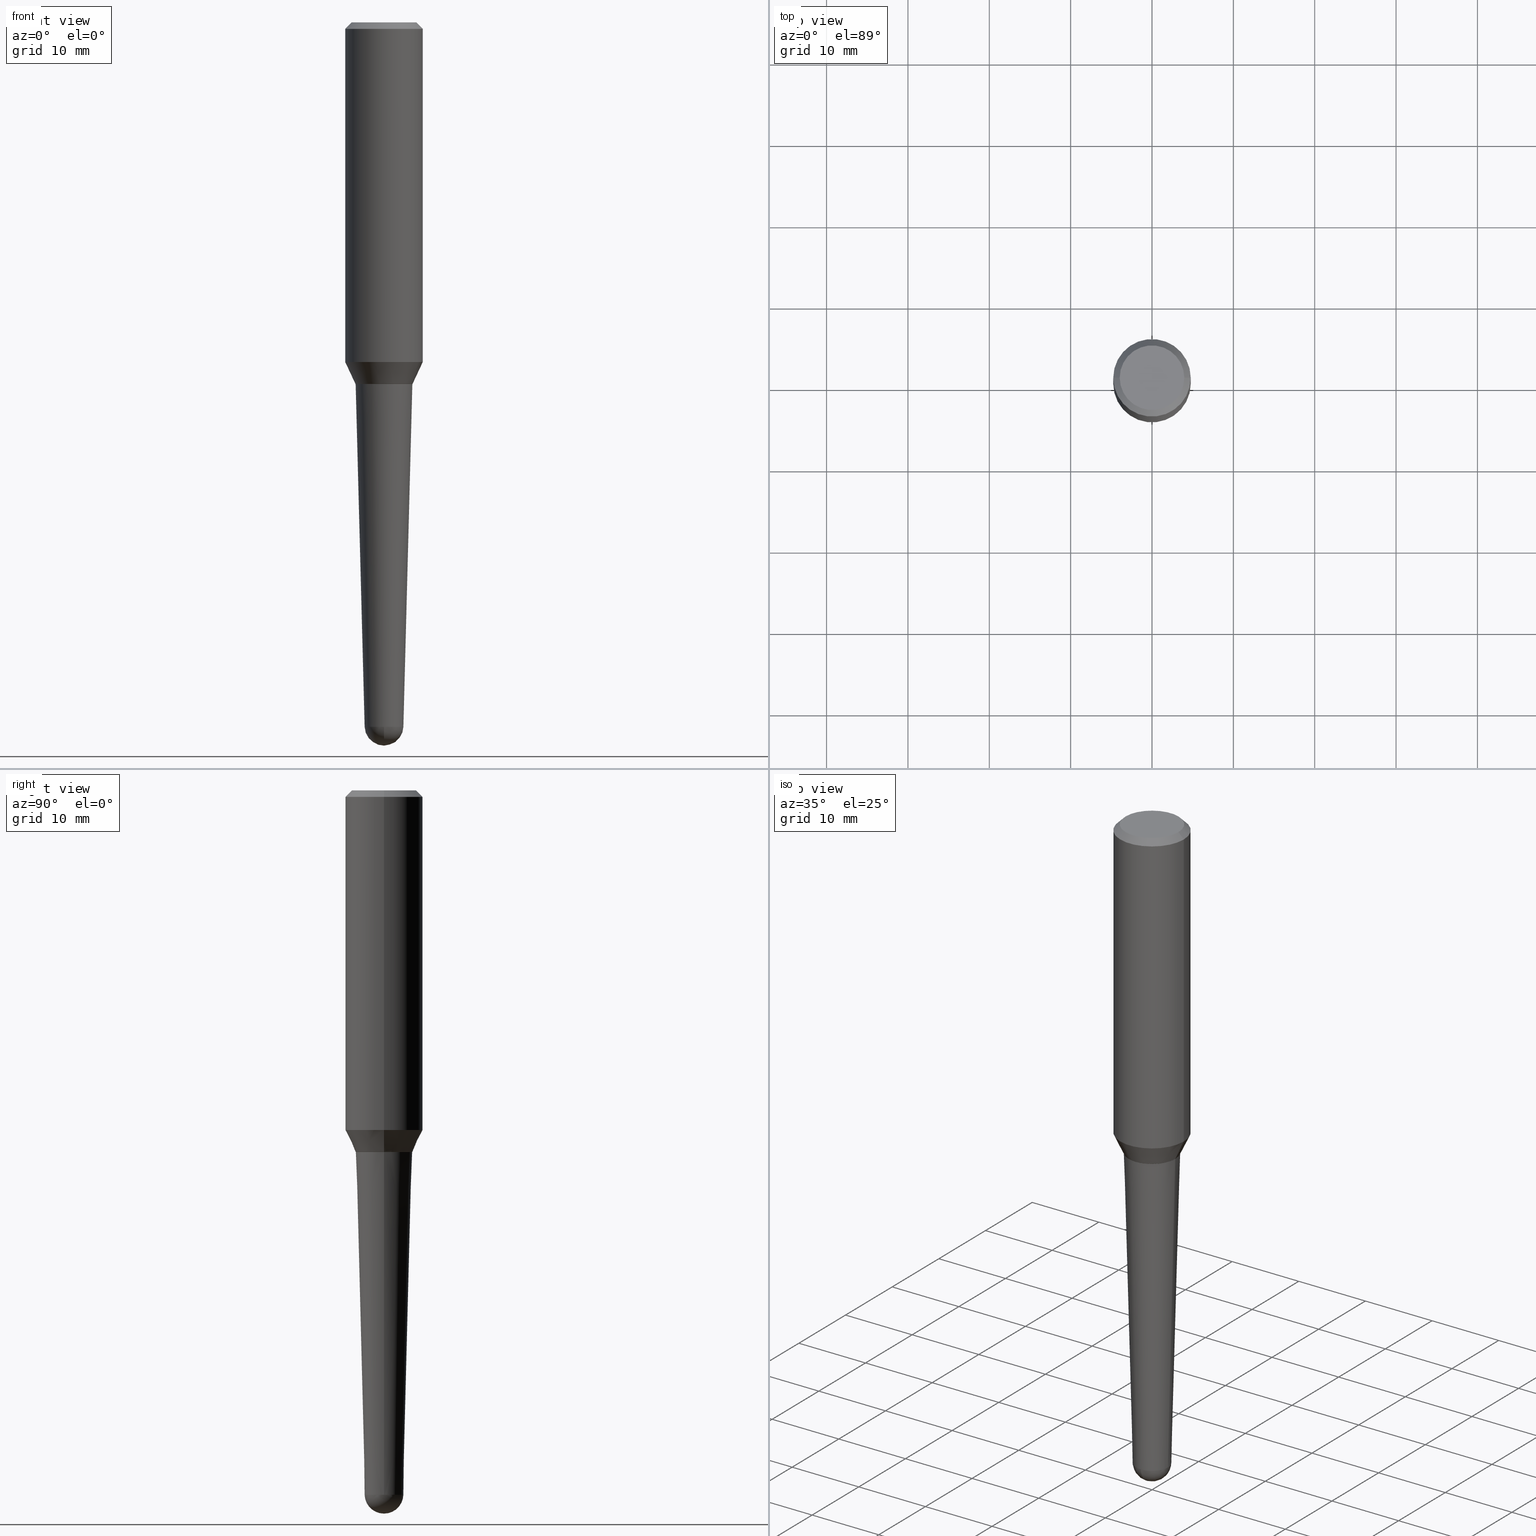
[diagram: canonical four-view strip — front | top / right | iso, engineering-drawing reading convention]
A machine part, canonical four-view strip (front | top / right | iso — engineering-drawing reading convention). The complete STEP part file that produces these views, byte-faithful:
ISO-10303-21;
HEADER;
FILE_DESCRIPTION (( 'STEP AP203' ),
    '1' );
FILE_NAME ('32418.STEP',
    '2024-03-04T15:23:18',
    ( '' ),
    ( '' ),
    'SwSTEP 2.0',
    'SolidWorks 2023',
    '' );
FILE_SCHEMA (( 'CONFIG_CONTROL_DESIGN' ));
ENDSEC;

DATA;
#1 = CARTESIAN_POINT ( 'NONE',  ( 8.335760446235340310E-29, -1.190125671179554785E-14, -3.408655397751278571 ) ) ;
#2 = VERTEX_POINT ( 'NONE', #285 ) ;
#3 = ORIENTED_EDGE ( 'NONE', *, *, #361, .F. ) ;
#4 = AXIS2_PLACEMENT_3D ( 'NONE', #239, #374, #296 ) ;
#5 = AXIS2_PLACEMENT_3D ( 'NONE', #155, #452, #26 ) ;
#6 = CC_DESIGN_DATE_AND_TIME_ASSIGNMENT ( #396, #42, ( #78 ) ) ;
#7 = PERSON_AND_ORGANIZATION ( #67, #215 ) ;
#8 = CARTESIAN_POINT ( 'NONE',  ( -0.1562500000000006661, 1.145642314307903724E-15, -8.065453072484580114E-16 ) ) ;
#9 = DATE_AND_TIME ( #182, #436 ) ;
#10 = CIRCLE ( 'NONE', #269, 0.09376785708270754527 ) ;
#11 = CARTESIAN_POINT ( 'NONE',  ( 8.582295004485378169E-29, -1.153103329011131551E-14, -3.406199999999999672 ) ) ;
#12 = DIRECTION ( 'NONE',  ( -2.445468806185136597E-29, 3.491481338843145583E-15, 1.000000000000000000 ) ) ;
#13 = ORIENTED_EDGE ( 'NONE', *, *, #273, .T. ) ;
#14 = CIRCLE ( 'NONE', #189, 0.1562500000000006661 ) ;
#15 = LINE ( 'NONE', #23, #411 ) ;
#16 = CARTESIAN_POINT ( 'NONE',  ( 4.278347676420896243E-29, -6.108346602306083167E-15, -1.749500000000000055 ) ) ;
#17 = ORIENTED_EDGE ( 'NONE', *, *, #449, .T. ) ;
#18 = ORIENTED_EDGE ( 'NONE', *, *, #195, .T. ) ;
#19 = CARTESIAN_POINT ( 'NONE',  ( 0.1372012772385309831, -7.068163741263051680E-15, -1.750000000000000000 ) ) ;
#20 = CARTESIAN_POINT ( 'NONE',  ( -0.09376785708270754527, -8.185107324501751393E-15, -3.408655397751278571 ) ) ;
#21 = DESIGN_CONTEXT ( 'detailed design', #174, 'design' ) ;
#22 = ORIENTED_EDGE ( 'NONE', *, *, #41, .F. ) ;
#23 = CARTESIAN_POINT ( 'NONE',  ( -0.1382012772385305677, -5.126367466160027236E-15, -1.749500000000000055 ) ) ;
#24 = CARTESIAN_POINT ( 'NONE',  ( -0.1372012772385309831, -5.135218634187045014E-15, -1.750000000000000000 ) ) ;
#25 = ORIENTED_EDGE ( 'NONE', *, *, #275, .T. ) ;
#26 = DIRECTION ( 'NONE',  ( 6.982962677686266711E-15, 1.000000000000000000, -5.824835807386490575E-15 ) ) ;
#27 = LINE ( 'NONE', #57, #279 ) ;
#28 = AXIS2_PLACEMENT_3D ( 'NONE', #310, #90, #451 ) ;
#29 = ORIENTED_EDGE ( 'NONE', *, *, #423, .T. ) ;
#30 = ORIENTED_EDGE ( 'NONE', *, *, #246, .F. ) ;
#31 = EDGE_LOOP ( 'NONE', ( #125, #138, #408, #351 ) ) ;
#32 = DIRECTION ( 'NONE',  ( -2.445468806185136597E-29, 3.491481338843145583E-15, 1.000000000000000000 ) ) ;
#33 = DIRECTION ( 'NONE',  ( 1.000000000000000000, -6.982962677686269866E-15, 0.000000000000000000 ) ) ;
#34 = AXIS2_PLACEMENT_3D ( 'NONE', #281, #214, #284 ) ;
#35 = PRODUCT_DEFINITION_FORMATION_WITH_SPECIFIED_SOURCE ( 'ANY', '', #60, .NOT_KNOWN. ) ;
#36 = EDGE_CURVE ( 'NONE', #184, #267, #350, .T. ) ;
#37 = CARTESIAN_POINT ( 'NONE',  ( 0.1382012772385305677, -7.073400963271313824E-15, -1.749500000000000055 ) ) ;
#38 = SECURITY_CLASSIFICATION_LEVEL ( 'unclassified' ) ;
#39 = DIRECTION ( 'NONE',  ( -2.445468806185136597E-29, 3.491481338843145583E-15, 1.000000000000000000 ) ) ;
#40 = CALENDAR_DATE ( 2024, 4, 3 ) ;
#41 = EDGE_CURVE ( 'NONE', #318, #418, #356, .T. ) ;
#42 = DATE_TIME_ROLE ( 'classification_date' ) ;
#43 = ADVANCED_FACE ( 'NONE', ( #422 ), #72, .T. ) ;
#44 = CARTESIAN_POINT ( 'NONE',  ( 4.279570410823988484E-29, -6.110092342975503093E-15, -1.749999999999999556 ) ) ;
#45 = EDGE_CURVE ( 'NONE', #355, #418, #358, .T. ) ;
#46 = AXIS2_PLACEMENT_3D ( 'NONE', #16, #68, #420 ) ;
#47 = DIRECTION ( 'NONE',  ( 1.000000000000000000, -6.982962677686263555E-15, 0.000000000000000000 ) ) ;
#48 = EDGE_CURVE ( 'NONE', #241, #405, #94, .T. ) ;
#49 = VERTEX_POINT ( 'NONE', #69 ) ;
#50 = DIRECTION ( 'NONE',  ( -2.445468806185136597E-29, 3.491481338843145583E-15, 1.000000000000000000 ) ) ;
#51 = DIRECTION ( 'NONE',  ( 1.000000000000000000, -6.982962677686266711E-15, 0.000000000000000000 ) ) ;
#52 = VERTEX_POINT ( 'NONE', #175 ) ;
#53 = CC_DESIGN_PERSON_AND_ORGANIZATION_ASSIGNMENT ( #292, #213, ( #35 ) ) ;
#54 = CARTESIAN_POINT ( 'NONE',  ( -0.1875000000000001110, 1.332267629550190807E-15, 5.931196827434205055E-16 ) ) ;
#55 = CC_DESIGN_APPROVAL ( #297, ( #78 ) ) ;
#56 = PLANE ( 'NONE',  #295 ) ;
#57 = CARTESIAN_POINT ( 'NONE',  ( 0.09376785708270754527, -1.255603415817071505E-14, -3.408655397751278571 ) ) ;
#58 = ORIENTED_EDGE ( 'NONE', *, *, #460, .F. ) ;
#59 = DIRECTION ( 'NONE',  ( -2.445468806185136597E-29, 3.491481338843145583E-15, 1.000000000000000000 ) ) ;
#60 = PRODUCT ( '32418', '32418', '', ( #334 ) ) ;
#61 = ORIENTED_EDGE ( 'NONE', *, *, #322, .T. ) ;
#62 = CARTESIAN_POINT ( 'NONE',  ( 8.335760446235340310E-29, -1.190125671179554785E-14, -3.408655397751278571 ) ) ;
#63 = AXIS2_PLACEMENT_3D ( 'NONE', #398, #84, #427 ) ;
#64 = AXIS2_PLACEMENT_3D ( 'NONE', #311, #12, #359 ) ;
#65 = ORIENTED_EDGE ( 'NONE', *, *, #111, .F. ) ;
#66 = ORIENTED_EDGE ( 'NONE', *, *, #312, .T. ) ;
#67 = PERSON ( 'UNSPECIFIED', 'UNSPECIFIED', 'UNSPECIFIED', ('UNSPECIFIED'), ('UNSPECIFIED'), ('UNSPECIFIED') ) ;
#68 = DIRECTION ( 'NONE',  ( -2.445468806185136597E-29, 3.491481338843145583E-15, 1.000000000000000000 ) ) ;
#69 = CARTESIAN_POINT ( 'NONE',  ( -0.1874999999999999722, -1.591897828901198296E-15, -0.03125000000000003469 ) ) ;
#70 = EDGE_CURVE ( 'NONE', #52, #318, #392, .T. ) ;
#71 = EDGE_LOOP ( 'NONE', ( #441, #319, #203, #262, #99 ) ) ;
#72 = CONICAL_SURFACE ( 'NONE', #455, 0.1377012772385309836, 0.7853981633974141952 ) ;
#73 = ORIENTED_EDGE ( 'NONE', *, *, #361, .T. ) ;
#74 = APPROVAL_ROLE ( '' ) ;
#75 = ADVANCED_FACE ( 'NONE', ( #426 ), #378, .T. ) ;
#76 = CALENDAR_DATE ( 2024, 4, 3 ) ;
#77 = AXIS2_PLACEMENT_3D ( 'NONE', #150, #118, #260 ) ;
#78 = SECURITY_CLASSIFICATION ( '', '', #38 ) ;
#79 = AXIS2_PLACEMENT_3D ( 'NONE', #291, #437, #397 ) ;
#80 = APPROVAL_ROLE ( '' ) ;
#81 = CC_DESIGN_PERSON_AND_ORGANIZATION_ASSIGNMENT ( #7, #357, ( #78 ) ) ;
#82 = CARTESIAN_POINT ( 'NONE',  ( 0.1562500000000006661, -1.233702489286409693E-15, -8.065453072484421356E-16 ) ) ;
#83 = VECTOR ( 'NONE', #419, 39.37007874015748143 ) ;
#84 = DIRECTION ( 'NONE',  ( -2.445468806185136597E-29, 3.491481338843145583E-15, 1.000000000000000000 ) ) ;
#85 = ORIENTED_EDGE ( 'NONE', *, *, #48, .T. ) ;
#86 = FACE_OUTER_BOUND ( 'NONE', #153, .T. ) ;
#87 = ORIENTED_EDGE ( 'NONE', *, *, #41, .T. ) ;
#88 = APPROVAL ( #347, 'UNSPECIFIED' ) ;
#89 = ORIENTED_EDGE ( 'NONE', *, *, #45, .F. ) ;
#90 = DIRECTION ( 'NONE',  ( -2.445468806185136597E-29, 3.491481338843145583E-15, 1.000000000000000000 ) ) ;
#91 = CARTESIAN_POINT ( 'NONE',  ( 4.279570410823988484E-29, -6.110092342975504671E-15, -1.750000000000000000 ) ) ;
#92 = VERTEX_POINT ( 'NONE', #8 ) ;
#93 = LOCAL_TIME ( 10, 23, 18.00000000000000000, #228 ) ;
#94 = CIRCLE ( 'NONE', #255, 0.1372012772385309831 ) ;
#95 = CARTESIAN_POINT ( 'NONE',  ( 9.861906948255459936E-45, -1.408018944594737599E-30, -4.032726536242251107E-16 ) ) ;
#96 = PERSON_AND_ORGANIZATION ( #67, #215 ) ;
#97 = CARTESIAN_POINT ( 'NONE',  ( 8.582295004485378169E-29, -1.153103329011131551E-14, -3.406199999999999672 ) ) ;
#98 = FACE_OUTER_BOUND ( 'NONE', #193, .T. ) ;
#99 = ORIENTED_EDGE ( 'NONE', *, *, #48, .F. ) ;
#100 = CIRCLE ( 'NONE', #335, 0.1562500000000006661 ) ;
#101 = ORIENTED_EDGE ( 'NONE', *, *, #399, .T. ) ;
#102 = EDGE_CURVE ( 'NONE', #318, #141, #144, .T. ) ;
#103 = ADVANCED_BREP_SHAPE_REPRESENTATION ( '32418', ( #386, #220, #77 ), #247 ) ;
#104 = DIRECTION ( 'NONE',  ( -2.445468806185136597E-29, 3.491481338843145583E-15, 1.000000000000000000 ) ) ;
#105 = VECTOR ( 'NONE', #124, 39.37007874015748143 ) ;
#106 = ORIENTED_EDGE ( 'NONE', *, *, #428, .F. ) ;
#107 = SHAPE_DEFINITION_REPRESENTATION ( #134, #103 ) ;
#108 = COORDINATED_UNIVERSAL_TIME_OFFSET ( 5, 0, .BEHIND. ) ;
#109 = VECTOR ( 'NONE', #293, 39.37007874015748143 ) ;
#110 = CIRCLE ( 'NONE', #222, 0.1382012772385305677 ) ;
#111 = EDGE_CURVE ( 'NONE', #2, #52, #151, .T. ) ;
#112 = COORDINATED_UNIVERSAL_TIME_OFFSET ( 5, 0, .BEHIND. ) ;
#113 = UNCERTAINTY_MEASURE_WITH_UNIT (LENGTH_MEASURE( 1.000000000000000082E-05 ), #328, 'distance_accuracy_value', 'NONE');
#114 = AXIS2_PLACEMENT_3D ( 'NONE', #294, #403, #196 ) ;
#115 = DIRECTION ( 'NONE',  ( -2.445468806185136597E-29, 3.491481338843145583E-15, 1.000000000000000000 ) ) ;
#116 = ADVANCED_FACE ( 'NONE', ( #147 ), #127, .T. ) ;
#117 = CARTESIAN_POINT ( 'NONE',  ( 4.279570410823988484E-29, -6.110092342975503093E-15, -1.749999999999999556 ) ) ;
#118 = DIRECTION ( 'NONE',  ( 0.000000000000000000, 0.000000000000000000, 1.000000000000000000 ) ) ;
#119 = ORIENTED_EDGE ( 'NONE', *, *, #449, .F. ) ;
#120 = DIRECTION ( 'NONE',  ( -2.445468806185136597E-29, 3.491481338843145583E-15, 1.000000000000000000 ) ) ;
#121 = DIRECTION ( 'NONE',  ( 6.982962677686266711E-15, 1.000000000000000000, 0.000000000000000000 ) ) ;
#122 = ORIENTED_EDGE ( 'NONE', *, *, #428, .T. ) ;
#123 = DATE_AND_TIME ( #459, #209 ) ;
#124 = DIRECTION ( 'NONE',  ( 0.7071067811865486830, -7.319954787623260779E-15, -0.7071067811865464625 ) ) ;
#125 = ORIENTED_EDGE ( 'NONE', *, *, #450, .F. ) ;
#126 = APPROVAL_DATE_TIME ( #339, #88 ) ;
#127 = CONICAL_SURFACE ( 'NONE', #79, 0.09376785708270754527, 0.02617993877991487903 ) ;
#128 = DIRECTION ( 'NONE',  ( 0.02617694830787308663, 3.307492242340416220E-15, 0.9996573249755572599 ) ) ;
#129 = VERTEX_POINT ( 'NONE', #82 ) ;
#130 = CALENDAR_DATE ( 2024, 4, 3 ) ;
#131 = EDGE_CURVE ( 'NONE', #371, #172, #162, .T. ) ;
#132 = AXIS2_PLACEMENT_3D ( 'NONE', #1, #104, #389 ) ;
#133 = DIRECTION ( 'NONE',  ( 1.000000000000000000, -6.982962677686263555E-15, 0.000000000000000000 ) ) ;
#134 = PRODUCT_DEFINITION_SHAPE ( 'NONE', 'NONE',  #136 ) ;
#135 = DIRECTION ( 'NONE',  ( -2.445468806185136597E-29, 3.491481338843145583E-15, 1.000000000000000000 ) ) ;
#136 = PRODUCT_DEFINITION ( 'UNKNOWN', '', #35, #21 ) ;
#137 = AXIS2_PLACEMENT_3D ( 'NONE', #91, #304, #233 ) ;
#138 = ORIENTED_EDGE ( 'NONE', *, *, #111, .T. ) ;
#139 = DIMENSIONAL_EXPONENTS ( 1.000000000000000000, 0.000000000000000000, 0.000000000000000000, 0.000000000000000000, 0.000000000000000000, 0.000000000000000000, 0.000000000000000000 ) ;
#140 = CARTESIAN_POINT ( 'NONE',  ( 9.128281720697099661E-29, 8.335382242720409866E-16, -1.750000000000000000 ) ) ;
#141 = VERTEX_POINT ( 'NONE', #407 ) ;
#142 = CC_DESIGN_PERSON_AND_ORGANIZATION_ASSIGNMENT ( #268, #200, ( #136 ) ) ;
#143 = DIRECTION ( 'NONE',  ( 1.000000000000000000, -6.982962677686265922E-15, 0.000000000000000000 ) ) ;
#144 = CIRCLE ( 'NONE', #325, 0.1382012772385305677 ) ;
#145 = CC_DESIGN_DATE_AND_TIME_ASSIGNMENT ( #123, #179, ( #136 ) ) ;
#146 = CONICAL_SURFACE ( 'NONE', #314, 0.1874999999999999722, 0.7853981633974498333 ) ;
#147 = FACE_OUTER_BOUND ( 'NONE', #71, .T. ) ;
#148 = APPLICATION_CONTEXT ( 'configuration controlled 3d designs of mechanical parts and assemblies' ) ;
#149 = CARTESIAN_POINT ( 'NONE',  ( 1.972381389651091987E-44, -2.816037889189475198E-30, -8.065453072484502214E-16 ) ) ;
#150 = CARTESIAN_POINT ( 'NONE',  ( 0.000000000000000000, 0.000000000000000000, 0.000000000000000000 ) ) ;
#151 = CIRCLE ( 'NONE', #201, 0.1377012772385309836 ) ;
#152 = LINE ( 'NONE', #54, #83 ) ;
#153 = EDGE_LOOP ( 'NONE', ( #376, #13, #160, #308 ) ) ;
#154 = FACE_OUTER_BOUND ( 'NONE', #445, .T. ) ;
#155 = CARTESIAN_POINT ( 'NONE',  ( 8.582295004485378169E-29, -1.153103329011131551E-14, -3.406199999999999672 ) ) ;
#156 = LINE ( 'NONE', #163, #105 ) ;
#157 = FACE_OUTER_BOUND ( 'NONE', #235, .T. ) ;
#158 = FACE_OUTER_BOUND ( 'NONE', #346, .T. ) ;
#159 = PERSON_AND_ORGANIZATION ( #67, #215 ) ;
#160 = ORIENTED_EDGE ( 'NONE', *, *, #36, .F. ) ;
#161 = ADVANCED_FACE ( 'NONE', ( #158 ), #323, .T. ) ;
#162 = CIRCLE ( 'NONE', #424, 0.09379999999999996674 ) ;
#163 = CARTESIAN_POINT ( 'NONE',  ( 0.1874999999999999722, -1.395452166421010480E-15, -0.03125000000000003469 ) ) ;
#164 = DIRECTION ( 'NONE',  ( -2.445468806185136597E-29, 3.491481338843145583E-15, 1.000000000000000000 ) ) ;
#165 = CARTESIAN_POINT ( 'NONE',  ( 4.279570410823988484E-29, -6.110092342975503093E-15, -1.749999999999999556 ) ) ;
#166 = ADVANCED_FACE ( 'NONE', ( #409 ), #56, .F. ) ;
#167 = ORIENTED_EDGE ( 'NONE', *, *, #217, .T. ) ;
#168 = CONICAL_SURFACE ( 'NONE', #46, 0.1382012772385305677, 0.4363323129985711701 ) ;
#169 = CARTESIAN_POINT ( 'NONE',  ( 8.335760446235340310E-29, -1.190125671179554785E-14, -3.408655397751278571 ) ) ;
#170 = CONICAL_SURFACE ( 'NONE', #34, 0.09376785708270754527, 0.02617993877991487903 ) ;
#171 = CARTESIAN_POINT ( 'NONE',  ( 4.019809163081975824E-29, -5.739222125063926739E-15, -1.643778547865743178 ) ) ;
#172 = VERTEX_POINT ( 'NONE', #202 ) ;
#173 = EDGE_CURVE ( 'NONE', #184, #241, #348, .T. ) ;
#174 = APPLICATION_CONTEXT ( 'configuration controlled 3d designs of mechanical parts and assemblies' ) ;
#175 = CARTESIAN_POINT ( 'NONE',  ( 0.1377012772385309836, -7.071655222601894687E-15, -1.749999999999999556 ) ) ;
#176 = VECTOR ( 'NONE', #305, 39.37007874015748854 ) ;
#177 = APPROVAL_STATUS ( 'not_yet_approved' ) ;
#178 = CIRCLE ( 'NONE', #395, 0.1874999999999999722 ) ;
#179 = DATE_TIME_ROLE ( 'creation_date' ) ;
#180 = EDGE_CURVE ( 'NONE', #287, #405, #27, .T. ) ;
#181 = APPROVAL_DATE_TIME ( #218, #297 ) ;
#182 = CALENDAR_DATE ( 2024, 4, 3 ) ;
#183 = AXIS2_PLACEMENT_3D ( 'NONE', #447, #224, #266 ) ;
#184 = VERTEX_POINT ( 'NONE', #20 ) ;
#185 = CARTESIAN_POINT ( 'NONE',  ( 0.1875000000000002220, -7.048527627130101747E-15, -1.643778547865743178 ) ) ;
#186 = EDGE_LOOP ( 'NONE', ( #349, #73, #331, #22 ) ) ;
#187 = DIRECTION ( 'NONE',  ( -7.105427357601001070E-15, -1.000000000000000000, 0.000000000000000000 ) ) ;
#188 = ORIENTED_EDGE ( 'NONE', *, *, #173, .T. ) ;
#189 = AXIS2_PLACEMENT_3D ( 'NONE', #149, #258, #223 ) ;
#190 = CC_DESIGN_SECURITY_CLASSIFICATION ( #78, ( #35 ) ) ;
#191 = VECTOR ( 'NONE', #375, 39.37007874015748143 ) ;
#192 = DIRECTION ( 'NONE',  ( 1.000000000000000000, -6.982962677686265133E-15, 0.000000000000000000 ) ) ;
#193 = EDGE_LOOP ( 'NONE', ( #167, #85 ) ) ;
#194 = CARTESIAN_POINT ( 'NONE',  ( 0.1874999999999999722, -1.418414293905023123E-15, -0.03125000000000003469 ) ) ;
#195 = EDGE_CURVE ( 'NONE', #129, #344, #156, .T. ) ;
#196 = DIRECTION ( 'NONE',  ( 6.982962677686266711E-15, 1.000000000000000000, -5.824835807386490575E-15 ) ) ;
#197 = EDGE_LOOP ( 'NONE', ( #119, #65 ) ) ;
#198 = DIRECTION ( 'NONE',  ( -1.000000000000000000, 6.982962677686265922E-15, -4.876176775795935793E-29 ) ) ;
#199 = ORIENTED_EDGE ( 'NONE', *, *, #283, .T. ) ;
#200 = PERSON_AND_ORGANIZATION_ROLE ( 'creator' ) ;
#201 = AXIS2_PLACEMENT_3D ( 'NONE', #44, #39, #252 ) ;
#202 = CARTESIAN_POINT ( 'NONE',  ( 6.547774463752502348E-16, 0.09376785708269567976, -3.408655397751279015 ) ) ;
#203 = ORIENTED_EDGE ( 'NONE', *, *, #460, .T. ) ;
#204 = APPROVAL ( #393, 'UNSPECIFIED' ) ;
#205 = DIRECTION ( 'NONE',  ( 0.4226182617406892827, 2.132291770428285464E-16, 0.9063077870366545996 ) ) ;
#206 = FACE_OUTER_BOUND ( 'NONE', #298, .T. ) ;
#207 = CONICAL_SURFACE ( 'NONE', #4, 0.1874999999999999722, 0.7853981633974498333 ) ;
#208 = FACE_OUTER_BOUND ( 'NONE', #338, .T. ) ;
#209 = LOCAL_TIME ( 10, 23, 18.00000000000000000, #309 ) ;
#210 = CIRCLE ( 'NONE', #415, 0.1874999999999999722 ) ;
#211 = ORIENTED_EDGE ( 'NONE', *, *, #372, .F. ) ;
#212 = ORIENTED_EDGE ( 'NONE', *, *, #372, .T. ) ;
#213 = PERSON_AND_ORGANIZATION_ROLE ( 'creator' ) ;
#214 = DIRECTION ( 'NONE',  ( -2.445468806185136597E-29, 3.491481338843145583E-15, 1.000000000000000000 ) ) ;
#215 = ORGANIZATION ( 'UNSPECIFIED', 'UNSPECIFIED', '' ) ;
#216 = VECTOR ( 'NONE', #264, 39.37007874015748854 ) ;
#217 = EDGE_CURVE ( 'NONE', #405, #241, #369, .T. ) ;
#218 = DATE_AND_TIME ( #40, #327 ) ;
#219 = DIRECTION ( 'NONE',  ( -2.445468806185136597E-29, 3.491481338843145583E-15, 1.000000000000000000 ) ) ;
#220 = MANIFOLD_SOLID_BREP ( 'Body-Move/Copy2[2]', #261 ) ;
#221 = ADVANCED_FACE ( 'NONE', ( #86 ), #301, .T. ) ;
#222 = AXIS2_PLACEMENT_3D ( 'NONE', #373, #59, #133 ) ;
#223 = DIRECTION ( 'NONE',  ( 1.000000000000000000, -6.982962677686265922E-15, 4.891558762689323976E-29 ) ) ;
#224 = DIRECTION ( 'NONE',  ( 2.438088387897960049E-29, -3.491481338843145188E-15, -1.000000000000000000 ) ) ;
#225 = APPLICATION_PROTOCOL_DEFINITION ( 'international standard', 'config_control_design', 1994, #148 ) ;
#226 = DIRECTION ( 'NONE',  ( -1.000000000000000000, 7.105427357601001070E-15, -4.926315508542082329E-29 ) ) ;
#227 = ORIENTED_EDGE ( 'NONE', *, *, #433, .T. ) ;
#228 = COORDINATED_UNIVERSAL_TIME_OFFSET ( 5, 0, .BEHIND. ) ;
#229 = AXIS2_PLACEMENT_3D ( 'NONE', #97, #226, #187 ) ;
#230 = ADVANCED_FACE ( 'NONE', ( #98 ), #342, .F. ) ;
#231 = LOCAL_TIME ( 10, 23, 18.00000000000000000, #108 ) ;
#232 = FACE_OUTER_BOUND ( 'NONE', #412, .T. ) ;
#233 = DIRECTION ( 'NONE',  ( 1.000000000000000000, -6.982962677686269866E-15, 0.000000000000000000 ) ) ;
#234 = APPLICATION_PROTOCOL_DEFINITION ( 'international standard', 'config_control_design', 1994, #174 ) ;
#235 = EDGE_LOOP ( 'NONE', ( #368, #313, #66, #276 ) ) ;
#236 = DIRECTION ( 'NONE',  ( -0.4226182617406892827, 6.167240084480781602E-15, 0.9063077870366545996 ) ) ;
#237 = DIRECTION ( 'NONE',  ( 1.000000000000000000, -6.982962677686265922E-15, 4.891558762689323976E-29 ) ) ;
#238 = APPROVAL_ROLE ( '' ) ;
#239 = CARTESIAN_POINT ( 'NONE',  ( 7.642090019328561499E-31, -1.091087918388484350E-16, -0.03125000000000003469 ) ) ;
#240 = CARTESIAN_POINT ( 'NONE',  ( -0.1874999999999999722, 1.200196710227326499E-15, -0.03125000000000003469 ) ) ;
#241 = VERTEX_POINT ( 'NONE', #24 ) ;
#242 = AXIS2_PLACEMENT_3D ( 'NONE', #117, #345, #370 ) ;
#243 = DIRECTION ( 'NONE',  ( 1.000000000000000000, -6.982962677686265922E-15, 4.876176775795935793E-29 ) ) ;
#244 = DIRECTION ( 'NONE',  ( 1.000000000000000000, -6.982962677686265133E-15, 0.000000000000000000 ) ) ;
#245 = FACE_OUTER_BOUND ( 'NONE', #197, .T. ) ;
#246 = EDGE_CURVE ( 'NONE', #49, #344, #178, .T. ) ;
#247 =( GEOMETRIC_REPRESENTATION_CONTEXT ( 3 ) GLOBAL_UNCERTAINTY_ASSIGNED_CONTEXT ( ( #113 ) ) GLOBAL_UNIT_ASSIGNED_CONTEXT ( ( #328, #454, #362 ) ) REPRESENTATION_CONTEXT ( 'NONE', 'WORKASPACE' ) );
#248 = DIRECTION ( 'NONE',  ( 2.445468806185136597E-29, -3.491481338843145583E-15, -1.000000000000000000 ) ) ;
#249 = ORIENTED_EDGE ( 'NONE', *, *, #217, .F. ) ;
#250 = DIRECTION ( 'NONE',  ( -2.445468806185136597E-29, 3.491481338843145583E-15, 1.000000000000000000 ) ) ;
#251 = PERSON_AND_ORGANIZATION_ROLE ( 'design_supplier' ) ;
#252 = DIRECTION ( 'NONE',  ( 1.000000000000000000, -6.982962677686265922E-15, 0.000000000000000000 ) ) ;
#253 = CC_DESIGN_PERSON_AND_ORGANIZATION_ASSIGNMENT ( #96, #343, ( #60 ) ) ;
#254 = APPROVAL_PERSON_ORGANIZATION ( #288, #204, #74 ) ;
#255 = AXIS2_PLACEMENT_3D ( 'NONE', #384, #432, #33 ) ;
#256 = LENGTH_MEASURE_WITH_UNIT ( LENGTH_MEASURE( 0.02539999999999999897 ), #380 );
#257 = CIRCLE ( 'NONE', #413, 0.1875000000000002220 ) ;
#258 = DIRECTION ( 'NONE',  ( -2.445468806185136597E-29, 3.491481338843145583E-15, 1.000000000000000000 ) ) ;
#259 = DIRECTION ( 'NONE',  ( 2.438088387897960049E-29, -3.491481338843145188E-15, -1.000000000000000000 ) ) ;
#260 = DIRECTION ( 'NONE',  ( 1.000000000000000000, 0.000000000000000000, 0.000000000000000000 ) ) ;
#261 = CLOSED_SHELL ( 'NONE', ( #326, #352, #75, #161, #324, #43, #316, #330, #382, #166 ) ) ;
#262 = ORIENTED_EDGE ( 'NONE', *, *, #180, .T. ) ;
#263 = DIRECTION ( 'NONE',  ( 1.000000000000000000, -6.982962677686274599E-15, 0.000000000000000000 ) ) ;
#264 = DIRECTION ( 'NONE',  ( -0.02617694830787308663, 3.676283300035285798E-15, 0.9996573249755572599 ) ) ;
#265 = ORIENTED_EDGE ( 'NONE', *, *, #131, .T. ) ;
#266 = DIRECTION ( 'NONE',  ( -1.000000000000000000, 6.982962677686265922E-15, -4.876176775795935793E-29 ) ) ;
#267 = VERTEX_POINT ( 'NONE', #271 ) ;
#268 = PERSON_AND_ORGANIZATION ( #67, #215 ) ;
#269 = AXIS2_PLACEMENT_3D ( 'NONE', #62, #120, #263 ) ;
#270 = CYLINDRICAL_SURFACE ( 'NONE', #28, 0.1875000000000001110 ) ;
#271 = CARTESIAN_POINT ( 'NONE',  ( -6.662606969790053702E-16, -0.09376785708271910547, -3.408655397751277683 ) ) ;
#272 = ORIENTED_EDGE ( 'NONE', *, *, #312, .F. ) ;
#273 = EDGE_CURVE ( 'NONE', #371, #267, #429, .T. ) ;
#274 = CARTESIAN_POINT ( 'NONE',  ( 8.815690708401794659E-29, -1.185279064620680232E-14, -3.500000000000000000 ) ) ;
#275 = EDGE_CURVE ( 'NONE', #92, #129, #100, .T. ) ;
#276 = ORIENTED_EDGE ( 'NONE', *, *, #246, .T. ) ;
#277 = DIRECTION ( 'NONE',  ( 1.000000000000000000, -6.982962677686274599E-15, 0.000000000000000000 ) ) ;
#278 = ORIENTED_EDGE ( 'NONE', *, *, #383, .T. ) ;
#279 = VECTOR ( 'NONE', #128, 39.37007874015748854 ) ;
#280 = EDGE_LOOP ( 'NONE', ( #3, #199, #87, #89 ) ) ;
#281 = CARTESIAN_POINT ( 'NONE',  ( 8.335760446235340310E-29, -1.190125671179554785E-14, -3.408655397751278571 ) ) ;
#282 = DIRECTION ( 'NONE',  ( 0.7071067811865232589, -2.468850131082003836E-15, 0.7071067811865715536 ) ) ;
#283 = EDGE_CURVE ( 'NONE', #141, #318, #110, .T. ) ;
#284 = DIRECTION ( 'NONE',  ( 1.000000000000000000, -6.982962677686274599E-15, 0.000000000000000000 ) ) ;
#285 = CARTESIAN_POINT ( 'NONE',  ( -0.1377012772385309836, -5.129016693334136070E-15, -1.749999999999999556 ) ) ;
#286 = AXIS2_PLACEMENT_3D ( 'NONE', #302, #115, #332 ) ;
#287 = VERTEX_POINT ( 'NONE', #307 ) ;
#288 = PERSON_AND_ORGANIZATION ( #67, #215 ) ;
#289 = DIRECTION ( 'NONE',  ( -1.000000000000000000, 6.982962677686266711E-15, 0.000000000000000000 ) ) ;
#290 = PERSON_AND_ORGANIZATION ( #67, #215 ) ;
#291 = CARTESIAN_POINT ( 'NONE',  ( 8.335760446235340310E-29, -1.190125671179554785E-14, -3.408655397751278571 ) ) ;
#292 = PERSON_AND_ORGANIZATION ( #67, #215 ) ;
#293 = DIRECTION ( 'NONE',  ( -2.445468806185136877E-29, 3.491481338843145188E-15, 1.000000000000000000 ) ) ;
#294 = CARTESIAN_POINT ( 'NONE',  ( 8.582295004485378169E-29, -1.153103329011131551E-14, -3.406199999999999672 ) ) ;
#295 = AXIS2_PLACEMENT_3D ( 'NONE', #95, #259, #198 ) ;
#296 = DIRECTION ( 'NONE',  ( -1.000000000000000000, 6.982962677686266711E-15, 0.000000000000000000 ) ) ;
#297 = APPROVAL ( #177, 'UNSPECIFIED' ) ;
#298 = EDGE_LOOP ( 'NONE', ( #61, #188, #249, #456, #278 ) ) ;
#299 = ORIENTED_EDGE ( 'NONE', *, *, #450, .T. ) ;
#300 = FACE_OUTER_BOUND ( 'NONE', #317, .T. ) ;
#301 = SPHERICAL_SURFACE ( 'NONE', #114, 0.09379999999999996674 ) ;
#302 = CARTESIAN_POINT ( 'NONE',  ( -1.450455682483482035E-44, 2.070866303999251778E-30, 5.931196827434296760E-16 ) ) ;
#303 = SPHERICAL_SURFACE ( 'NONE', #5, 0.09379999999999996674 ) ;
#304 = DIRECTION ( 'NONE',  ( -2.445468806185136597E-29, 3.491481338843145583E-15, 1.000000000000000000 ) ) ;
#305 = DIRECTION ( 'NONE',  ( -0.7071067811865232589, 7.493145998870265808E-15, 0.7071067811865715536 ) ) ;
#306 = CIRCLE ( 'NONE', #444, 0.09376785708270754527 ) ;
#307 = CARTESIAN_POINT ( 'NONE',  ( 0.09376785708270754527, -9.812098949716884549E-15, -3.408655397751278571 ) ) ;
#308 = ORIENTED_EDGE ( 'NONE', *, *, #322, .F. ) ;
#309 = COORDINATED_UNIVERSAL_TIME_OFFSET ( 5, 0, .BEHIND. ) ;
#310 = CARTESIAN_POINT ( 'NONE',  ( -1.450455682483482035E-44, 2.070866303999251778E-30, 5.931196827434296760E-16 ) ) ;
#311 = CARTESIAN_POINT ( 'NONE',  ( 4.278347676420896243E-29, -6.108346602306083167E-15, -1.749500000000000055 ) ) ;
#312 = EDGE_CURVE ( 'NONE', #92, #49, #458, .T. ) ;
#313 = ORIENTED_EDGE ( 'NONE', *, *, #275, .F. ) ;
#314 = AXIS2_PLACEMENT_3D ( 'NONE', #379, #248, #289 ) ;
#315 = PLANE ( 'NONE',  #388 ) ;
#316 = ADVANCED_FACE ( 'NONE', ( #333 ), #168, .T. ) ;
#317 = EDGE_LOOP ( 'NONE', ( #448, #265, #404, #58 ) ) ;
#318 = VERTEX_POINT ( 'NONE', #391 ) ;
#319 = ORIENTED_EDGE ( 'NONE', *, *, #36, .T. ) ;
#320 = COORDINATED_UNIVERSAL_TIME_OFFSET ( 5, 0, .BEHIND. ) ;
#321 = ADVANCED_FACE ( 'NONE', ( #206 ), #170, .T. ) ;
#322 = EDGE_CURVE ( 'NONE', #172, #184, #306, .T. ) ;
#323 = CONICAL_SURFACE ( 'NONE', #242, 0.1377012772385309836, 0.7853981633974141952 ) ;
#324 = ADVANCED_FACE ( 'NONE', ( #245 ), #315, .F. ) ;
#325 = AXIS2_PLACEMENT_3D ( 'NONE', #440, #219, #47 ) ;
#326 = ADVANCED_FACE ( 'NONE', ( #208 ), #146, .T. ) ;
#327 = LOCAL_TIME ( 10, 23, 18.00000000000000000, #112 ) ;
#328 =( CONVERSION_BASED_UNIT ( 'INCH', #256 ) LENGTH_UNIT ( ) NAMED_UNIT ( #139 ) );
#329 = ORIENTED_EDGE ( 'NONE', *, *, #102, .F. ) ;
#330 = ADVANCED_FACE ( 'NONE', ( #154 ), #270, .T. ) ;
#331 = ORIENTED_EDGE ( 'NONE', *, *, #399, .F. ) ;
#332 = DIRECTION ( 'NONE',  ( 1.000000000000000000, -6.982962677686266711E-15, 4.852736867747363404E-29 ) ) ;
#333 = FACE_OUTER_BOUND ( 'NONE', #280, .T. ) ;
#334 = MECHANICAL_CONTEXT ( 'NONE', #148, 'mechanical' ) ;
#335 = AXIS2_PLACEMENT_3D ( 'NONE', #417, #366, #237 ) ;
#336 = EDGE_LOOP ( 'NONE', ( #25, #122 ) ) ;
#337 = CARTESIAN_POINT ( 'NONE',  ( -0.09376785708270754527, -1.123499601481645619E-14, -3.408655397751278571 ) ) ;
#338 = EDGE_LOOP ( 'NONE', ( #106, #18, #29, #272 ) ) ;
#339 = DATE_AND_TIME ( #130, #93 ) ;
#340 = LINE ( 'NONE', #416, #109 ) ;
#341 = CARTESIAN_POINT ( 'NONE',  ( -0.1875000000000002220, -4.406954495513735735E-15, -1.643778547865743178 ) ) ;
#342 = PLANE ( 'NONE',  #183 ) ;
#343 = PERSON_AND_ORGANIZATION_ROLE ( 'design_owner' ) ;
#344 = VERTEX_POINT ( 'NONE', #194 ) ;
#345 = DIRECTION ( 'NONE',  ( -2.445468806185136597E-29, 3.491481338843145583E-15, 1.000000000000000000 ) ) ;
#346 = EDGE_LOOP ( 'NONE', ( #17, #299, #329, #381 ) ) ;
#347 = APPROVAL_STATUS ( 'not_yet_approved' ) ;
#348 = LINE ( 'NONE', #337, #216 ) ;
#349 = ORIENTED_EDGE ( 'NONE', *, *, #102, .T. ) ;
#350 = CIRCLE ( 'NONE', #132, 0.09376785708270754527 ) ;
#351 = ORIENTED_EDGE ( 'NONE', *, *, #283, .F. ) ;
#352 = ADVANCED_FACE ( 'NONE', ( #232 ), #457, .T. ) ;
#353 = CARTESIAN_POINT ( 'NONE',  ( 0.1377012772385309836, -7.071655222601894687E-15, -1.749999999999999556 ) ) ;
#354 = CARTESIAN_POINT ( 'NONE',  ( -0.1377012772385309836, -5.131665920508245693E-15, -1.749999999999999556 ) ) ;
#355 = VERTEX_POINT ( 'NONE', #341 ) ;
#356 = LINE ( 'NONE', #37, #390 ) ;
#357 = PERSON_AND_ORGANIZATION_ROLE ( 'classification_officer' ) ;
#358 = CIRCLE ( 'NONE', #401, 0.1875000000000002220 ) ;
#359 = DIRECTION ( 'NONE',  ( 1.000000000000000000, -6.982962677686263555E-15, 0.000000000000000000 ) ) ;
#360 = APPROVAL_DATE_TIME ( #9, #204 ) ;
#361 = EDGE_CURVE ( 'NONE', #141, #355, #15, .T. ) ;
#362 =( NAMED_UNIT ( * ) SI_UNIT ( $, .STERADIAN. ) SOLID_ANGLE_UNIT ( ) );
#363 = CARTESIAN_POINT ( 'NONE',  ( 7.642090019328561499E-31, -1.091087918388484350E-16, -0.03125000000000003469 ) ) ;
#364 = ORIENTED_EDGE ( 'NONE', *, *, #423, .F. ) ;
#365 = DIRECTION ( 'NONE',  ( -2.445468806185136597E-29, 3.491481338843145583E-15, 1.000000000000000000 ) ) ;
#366 = DIRECTION ( 'NONE',  ( -2.445468806185136597E-29, 3.491481338843145583E-15, 1.000000000000000000 ) ) ;
#367 = AXIS2_PLACEMENT_3D ( 'NONE', #431, #32, #277 ) ;
#368 = ORIENTED_EDGE ( 'NONE', *, *, #195, .F. ) ;
#369 = CIRCLE ( 'NONE', #137, 0.1372012772385309831 ) ;
#370 = DIRECTION ( 'NONE',  ( 1.000000000000000000, -6.982962677686265922E-15, 0.000000000000000000 ) ) ;
#371 = VERTEX_POINT ( 'NONE', #274 ) ;
#372 = EDGE_CURVE ( 'NONE', #355, #49, #152, .T. ) ;
#373 = CARTESIAN_POINT ( 'NONE',  ( 4.278347676420896243E-29, -6.108346602306083167E-15, -1.749500000000000055 ) ) ;
#374 = DIRECTION ( 'NONE',  ( 2.445468806185136597E-29, -3.491481338843145583E-15, -1.000000000000000000 ) ) ;
#375 = DIRECTION ( 'NONE',  ( -0.7071067811865486830, 2.468850131082268893E-15, -0.7071067811865464625 ) ) ;
#376 = ORIENTED_EDGE ( 'NONE', *, *, #131, .F. ) ;
#377 = CC_DESIGN_APPROVAL ( #88, ( #136 ) ) ;
#378 = CONICAL_SURFACE ( 'NONE', #64, 0.1382012772385305677, 0.4363323129985711701 ) ;
#379 = CARTESIAN_POINT ( 'NONE',  ( 7.642090019328561499E-31, -1.091087918388484350E-16, -0.03125000000000003469 ) ) ;
#380 =( LENGTH_UNIT ( ) NAMED_UNIT ( * ) SI_UNIT ( $, .METRE. ) );
#381 = ORIENTED_EDGE ( 'NONE', *, *, #70, .F. ) ;
#382 = ADVANCED_FACE ( 'NONE', ( #157 ), #207, .T. ) ;
#383 = EDGE_CURVE ( 'NONE', #287, #172, #10, .T. ) ;
#384 = CARTESIAN_POINT ( 'NONE',  ( 4.279570410823988484E-29, -6.110092342975504671E-15, -1.750000000000000000 ) ) ;
#385 = DIRECTION ( 'NONE',  ( -2.438088387897960049E-29, 3.491481338843145188E-15, 1.000000000000000000 ) ) ;
#386 = MANIFOLD_SOLID_BREP ( 'Body-Move/Copy2[1]', #402 ) ;
#387 = LINE ( 'NONE', #354, #176 ) ;
#388 = AXIS2_PLACEMENT_3D ( 'NONE', #140, #385, #243 ) ;
#389 = DIRECTION ( 'NONE',  ( 1.000000000000000000, -6.982962677686274599E-15, 0.000000000000000000 ) ) ;
#390 = VECTOR ( 'NONE', #205, 39.37007874015748143 ) ;
#391 = CARTESIAN_POINT ( 'NONE',  ( 0.1382012772385305677, -7.073400963271314613E-15, -1.749500000000000055 ) ) ;
#392 = LINE ( 'NONE', #353, #435 ) ;
#393 = APPROVAL_STATUS ( 'not_yet_approved' ) ;
#394 = CC_DESIGN_APPROVAL ( #204, ( #35 ) ) ;
#395 = AXIS2_PLACEMENT_3D ( 'NONE', #363, #453, #51 ) ;
#396 = DATE_AND_TIME ( #76, #231 ) ;
#397 = DIRECTION ( 'NONE',  ( 1.000000000000000000, -6.982962677686274599E-15, 0.000000000000000000 ) ) ;
#398 = CARTESIAN_POINT ( 'NONE',  ( 4.279570410823988484E-29, -6.110092342975503093E-15, -1.749999999999999556 ) ) ;
#399 = EDGE_CURVE ( 'NONE', #418, #355, #257, .T. ) ;
#400 = CARTESIAN_POINT ( 'NONE',  ( 7.642090019328561499E-31, -1.091087918388484350E-16, -0.03125000000000003469 ) ) ;
#401 = AXIS2_PLACEMENT_3D ( 'NONE', #171, #250, #244 ) ;
#402 = CLOSED_SHELL ( 'NONE', ( #321, #221, #414, #116, #230 ) ) ;
#403 = DIRECTION ( 'NONE',  ( -1.000000000000000000, 6.982962677686266711E-15, -4.883557194083112901E-29 ) ) ;
#404 = ORIENTED_EDGE ( 'NONE', *, *, #383, .F. ) ;
#405 = VERTEX_POINT ( 'NONE', #19 ) ;
#406 = CARTESIAN_POINT ( 'NONE',  ( 4.019809163081975824E-29, -5.739222125063926739E-15, -1.643778547865743178 ) ) ;
#407 = CARTESIAN_POINT ( 'NONE',  ( -0.1382012772385305677, -5.126367466160027236E-15, -1.749500000000000055 ) ) ;
#408 = ORIENTED_EDGE ( 'NONE', *, *, #70, .T. ) ;
#409 = FACE_OUTER_BOUND ( 'NONE', #336, .T. ) ;
#410 = CIRCLE ( 'NONE', #63, 0.1377012772385309836 ) ;
#411 = VECTOR ( 'NONE', #236, 39.37007874015748143 ) ;
#412 = EDGE_LOOP ( 'NONE', ( #101, #212, #364, #462 ) ) ;
#413 = AXIS2_PLACEMENT_3D ( 'NONE', #406, #365, #192 ) ;
#414 = ADVANCED_FACE ( 'NONE', ( #300 ), #303, .T. ) ;
#415 = AXIS2_PLACEMENT_3D ( 'NONE', #400, #50, #446 ) ;
#416 = CARTESIAN_POINT ( 'NONE',  ( 0.1875000000000001110, -1.309305502066173628E-15, 5.931196827434387479E-16 ) ) ;
#417 = CARTESIAN_POINT ( 'NONE',  ( 1.972381389651091987E-44, -2.816037889189475198E-30, -8.065453072484502214E-16 ) ) ;
#418 = VERTEX_POINT ( 'NONE', #185 ) ;
#419 = DIRECTION ( 'NONE',  ( -2.445468806185136877E-29, 3.491481338843145188E-15, 1.000000000000000000 ) ) ;
#420 = DIRECTION ( 'NONE',  ( 1.000000000000000000, -6.982962677686263555E-15, 0.000000000000000000 ) ) ;
#421 = CC_DESIGN_PERSON_AND_ORGANIZATION_ASSIGNMENT ( #290, #251, ( #35 ) ) ;
#422 = FACE_OUTER_BOUND ( 'NONE', #31, .T. ) ;
#423 = EDGE_CURVE ( 'NONE', #344, #49, #210, .T. ) ;
#424 = AXIS2_PLACEMENT_3D ( 'NONE', #11, #438, #121 ) ;
#425 = ORIENTED_EDGE ( 'NONE', *, *, #45, .T. ) ;
#426 = FACE_OUTER_BOUND ( 'NONE', #186, .T. ) ;
#427 = DIRECTION ( 'NONE',  ( 1.000000000000000000, -6.982962677686265922E-15, 0.000000000000000000 ) ) ;
#428 = EDGE_CURVE ( 'NONE', #129, #92, #14, .T. ) ;
#429 = CIRCLE ( 'NONE', #229, 0.09379999999999996674 ) ;
#430 = PRODUCT_RELATED_PRODUCT_CATEGORY ( 'detail', '', ( #60 ) ) ;
#431 = CARTESIAN_POINT ( 'NONE',  ( 8.335760446235340310E-29, -1.190125671179554785E-14, -3.408655397751278571 ) ) ;
#432 = DIRECTION ( 'NONE',  ( -2.445468806185136597E-29, 3.491481338843145583E-15, 1.000000000000000000 ) ) ;
#433 = EDGE_CURVE ( 'NONE', #418, #344, #340, .T. ) ;
#434 = APPROVAL_PERSON_ORGANIZATION ( #159, #88, #238 ) ;
#435 = VECTOR ( 'NONE', #282, 39.37007874015748854 ) ;
#436 = LOCAL_TIME ( 10, 23, 18.00000000000000000, #320 ) ;
#437 = DIRECTION ( 'NONE',  ( -2.445468806185136597E-29, 3.491481338843145583E-15, 1.000000000000000000 ) ) ;
#438 = DIRECTION ( 'NONE',  ( 1.000000000000000000, -6.982962677686265922E-15, 4.883557194083112340E-29 ) ) ;
#439 = PERSON_AND_ORGANIZATION ( #67, #215 ) ;
#440 = CARTESIAN_POINT ( 'NONE',  ( 4.278347676420896243E-29, -6.108346602306083167E-15, -1.749500000000000055 ) ) ;
#441 = ORIENTED_EDGE ( 'NONE', *, *, #173, .F. ) ;
#442 = CIRCLE ( 'NONE', #367, 0.09376785708270754527 ) ;
#443 = APPROVAL_PERSON_ORGANIZATION ( #439, #297, #80 ) ;
#444 = AXIS2_PLACEMENT_3D ( 'NONE', #169, #164, #461 ) ;
#445 = EDGE_LOOP ( 'NONE', ( #211, #425, #227, #30 ) ) ;
#446 = DIRECTION ( 'NONE',  ( 1.000000000000000000, -6.982962677686266711E-15, 0.000000000000000000 ) ) ;
#447 = CARTESIAN_POINT ( 'NONE',  ( 4.279570410823988484E-29, -6.110092342975504671E-15, -1.750000000000000000 ) ) ;
#448 = ORIENTED_EDGE ( 'NONE', *, *, #273, .F. ) ;
#449 = EDGE_CURVE ( 'NONE', #52, #2, #410, .T. ) ;
#450 = EDGE_CURVE ( 'NONE', #2, #141, #387, .T. ) ;
#451 = DIRECTION ( 'NONE',  ( 1.000000000000000000, -6.982962677686266711E-15, 4.852736867747363404E-29 ) ) ;
#452 = DIRECTION ( 'NONE',  ( -1.000000000000000000, 6.982962677686266711E-15, -4.883557194083112901E-29 ) ) ;
#453 = DIRECTION ( 'NONE',  ( -2.445468806185136597E-29, 3.491481338843145583E-15, 1.000000000000000000 ) ) ;
#454 =( NAMED_UNIT ( * ) PLANE_ANGLE_UNIT ( ) SI_UNIT ( $, .RADIAN. ) );
#455 = AXIS2_PLACEMENT_3D ( 'NONE', #165, #135, #143 ) ;
#456 = ORIENTED_EDGE ( 'NONE', *, *, #180, .F. ) ;
#457 = CYLINDRICAL_SURFACE ( 'NONE', #286, 0.1875000000000001110 ) ;
#458 = LINE ( 'NONE', #240, #191 ) ;
#459 = CALENDAR_DATE ( 2024, 4, 3 ) ;
#460 = EDGE_CURVE ( 'NONE', #267, #287, #442, .T. ) ;
#461 = DIRECTION ( 'NONE',  ( 1.000000000000000000, -6.982962677686274599E-15, 0.000000000000000000 ) ) ;
#462 = ORIENTED_EDGE ( 'NONE', *, *, #433, .F. ) ;
ENDSEC;
END-ISO-10303-21;
